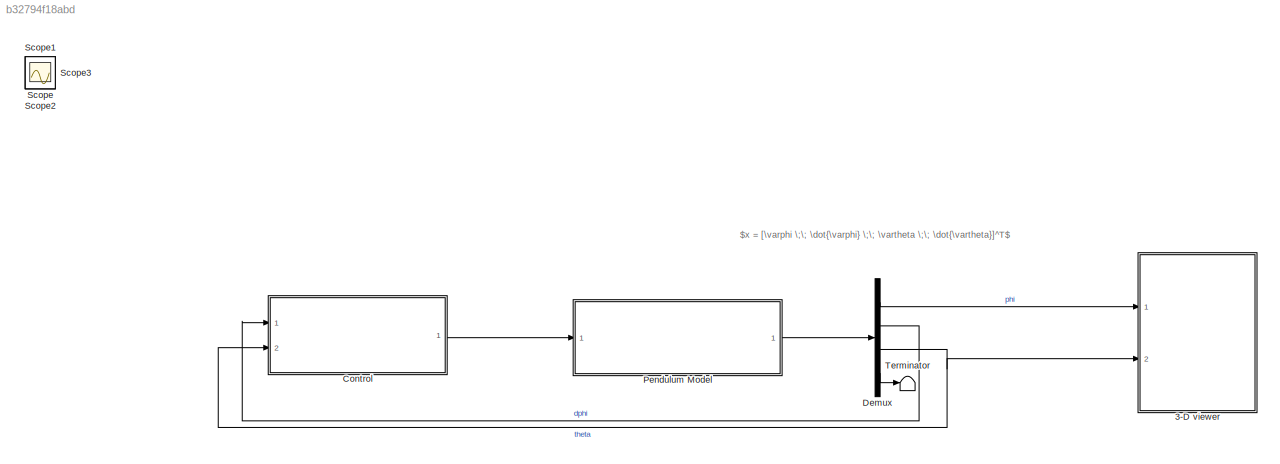
MODEL slx_b32794f18abd
KIND model
CONFIG AbsTol = auto
CONFIG EnableMultiTasking = off
CONFIG FixedStep = auto
CONFIG MaxStep = auto
CONFIG MinStep = auto
CONFIG RelTol = 1e-3
CONFIG SampleTimeConstraint = Unconstrained
CONFIG SolverName = VariableStepAuto
CONFIG StartTime = 0.0
CONFIG StopTime = 30
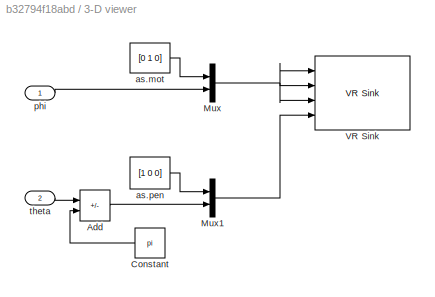
BLOCK [SubSystem] 3-D viewer
  Ports = [2]
  RequestExecContextInheritance = off
BLOCK [Sum] 3-D viewer/Add
  IconShape = rectangular
  Inputs = -+
  Ports = [2, 1]
BLOCK [Constant] 3-D viewer/Constant
  Value = pi
BLOCK [Mux] 3-D viewer/Mux
  DisplayOption = bar
  Inputs = 2
  Ports = [2, 1]
BLOCK [Mux] 3-D viewer/Mux1
  DisplayOption = bar
  Inputs = 2
  Ports = [2, 1]
BLOCK [Reference] 3-D viewer/VR Sink  REF=vrlib/VR Sink
  InstantiateOnLoad = on
  Ports = [4]
  SourceBlock = vrlib/VR Sink
  SourceProductBaseCode = SL
  SourceType = Virtual Reality Sink
BLOCK [Constant] 3-D viewer/as.mot
  Value = [0 1 0]
BLOCK [Constant] 3-D viewer/as.pen
  Value = [1 0 0]
BLOCK [Inport] 3-D viewer/phi
BLOCK [Inport] 3-D viewer/theta
  Port = 2
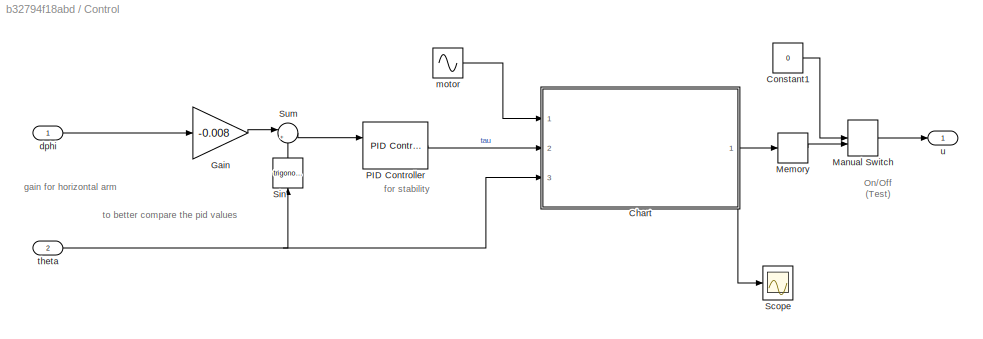
BLOCK [SubSystem] Control
  Ports = [2, 1]
  RequestExecContextInheritance = off
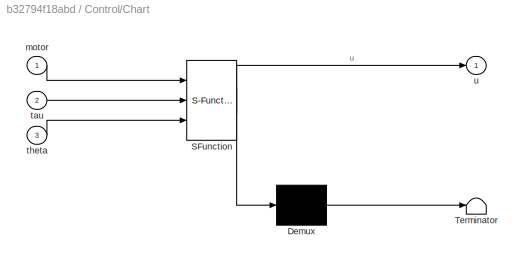
BLOCK [SubSystem] Control/Chart
  ErrorFcn = Stateflow.Translate.translate
  PermitHierarchicalResolution = ExplicitOnly
  Ports = [3, 1]
  RequestExecContextInheritance = off
  SFBlockType = Chart
  SystemSampleTime = 0.01
  TreatAsAtomicUnit = on
BLOCK [Demux] Control/Chart/ Demux 
  Outputs = 1
  Ports = [1, 1]
BLOCK [S-Function] Control/Chart/ SFunction 
  EnableBusSupport = on
  FunctionName = sf_sfun
  PortCounts = [3 2]
  Ports = [3, 2]
  SFcnIsStateOwnerBlock = off
  SFunctionDeploymentMode = off
  Tag = Stateflow S-Function 3
BLOCK [Terminator] Control/Chart/ Terminator 
BLOCK [Inport] Control/Chart/motor
BLOCK [Inport] Control/Chart/tau
  Port = 2
BLOCK [Inport] Control/Chart/theta
  Port = 3
BLOCK [Outport] Control/Chart/u
BLOCK [Constant] Control/Constant1
  Value = 0
BLOCK [Gain] Control/Gain
  Gain = -0.008
BLOCK [ManualSwitch] Control/Manual Switch
  CurrentSetting = 0
BLOCK [Memory] Control/Memory
BLOCK [Reference] Control/PID Controller  REF=pid_lib/PID Controller
  Ports = [2, 1]
  SourceBlock = pid_lib/PID Controller
  SourceProductBaseCode = SL
  SourceType = PID 1dof
BLOCK [Scope] Control/Scope
  Floating = off
  NumInputPorts = 1
  Ports = [1]
  ScopeSpecificationString = Simulink.scopes.TimeScopeBlockCfg('CurrentConfiguration', extmgr.ConfigurationSet(extmgr.Configuration('Core','General UI',true),extmgr.Configuration('Core','Source UI',true),extmgr.Configuration('Sources','WiredSimulink',true,'DataLoggingLimitDataPoints',true,'DataLoggingSaveFormat','Array','DataLoggingDecimation','1','DataLoggingDecimateData',true,'DataLoggingVariableName','ScopeData1'),extmgr.C...<+1593ch>
BLOCK [Trigonometry] Control/Sin
  NameLocation = right
  Ports = [1, 1]
BLOCK [Sum] Control/Sum
  Inputs = |+-
  Ports = [2, 1]
BLOCK [Inport] Control/dphi
BLOCK [Sin] Control/motor
  Amplitude = 8
  Frequency = 2*pi
  Ports = [0, 1]
  SampleTime = 0
BLOCK [Inport] Control/theta
  Port = 2
BLOCK [Outport] Control/u
BLOCK [Demux] Demux
  Ports = [1, 4]
BLOCK [ModelReference] Pendulum Model
  ModelNameDialog = furuta_model.slx
  ModelReferenceVersion = 1.21
  Ports = [1, 1]
BLOCK [Scope] Scope
  Floating = off
  IOType = viewer
  NumInputPorts = 1
  Ports = []
  ScopeSpecificationString = Simulink.scopes.TimeScopeBlockCfg('CurrentConfiguration', extmgr.ConfigurationSet(extmgr.Configuration('Core','General UI',true),extmgr.Configuration('Core','Source UI',true),extmgr.Configuration('Sources','WiredSimulink',true),extmgr.Configuration('Visuals','Time Domain',true,'SerializedDisplays',{struct('MinYLimReal','1.74117','MaxYLimReal','4.44593','YLabelReal','','MinYLimMag','1.74117','MaxYL...<+1397ch>
BLOCK [Scope] Scope1
  Floating = off
  IOType = viewer
  NumInputPorts = 1
  Ports = []
  ScopeSpecificationString = Simulink.scopes.TimeScopeBlockCfg('CurrentConfiguration', extmgr.ConfigurationSet(extmgr.Configuration('Core','General UI',true),extmgr.Configuration('Core','Source UI',true),extmgr.Configuration('Sources','WiredSimulink',true,'DataLoggingVariableName','ScopeData1'),extmgr.Configuration('Visuals','Time Domain',true,'SerializedDisplays',{struct('MinYLimReal','-3.02229','MaxYLimReal','1.51969','YLab...<+1411ch>
BLOCK [Scope] Scope2
  Floating = off
  IOType = viewer
  NumInputPorts = 1
  Ports = []
  ScopeSpecificationString = Simulink.scopes.TimeScopeBlockCfg('CurrentConfiguration', extmgr.ConfigurationSet(extmgr.Configuration('Core','General UI',true),extmgr.Configuration('Core','Source UI',true),extmgr.Configuration('Sources','WiredSimulink',true,'DataLoggingVariableName','ScopeData1'),extmgr.Configuration('Visuals','Time Domain',true,'SerializedDisplays',{struct('MinYLimReal','-12.5','MaxYLimReal','12.5','YLabelReal...<+1373ch>
BLOCK [Scope] Scope3
  Floating = off
  IOType = viewer
  NumInputPorts = 1
  Ports = []
  ScopeSpecificationString = Simulink.scopes.TimeScopeBlockCfg('CurrentConfiguration', extmgr.ConfigurationSet(extmgr.Configuration('Core','General UI',true),extmgr.Configuration('Core','Source UI',true),extmgr.Configuration('Sources','WiredSimulink',true,'DataLoggingVariableName','ScopeData1'),extmgr.Configuration('Visuals','Time Domain',true,'SerializedDisplays',{struct('MinYLimReal','-14.48988','MaxYLimReal','5.04881','YLa...<+1395ch>
BLOCK [Terminator] Terminator
ANNOTATION (root): $x = [\varphi \;\; \dot{\varphi} \;\; \vartheta \;\; \dot{\vartheta}]^T$
ANNOTATION Control: On/Off (Test)
ANNOTATION Control: for stability
ANNOTATION Control: gain for horizontal arm
ANNOTATION Control: to better compare the pid values
LINE 3-D viewer/Add:1 -> 3-D viewer/Mux1:2
LINE 3-D viewer/Constant:1 -> 3-D viewer/Add:2
LINE 3-D viewer/Mux1:1 -> 3-D viewer/VR Sink:4
NET 3-D viewer/Mux:1 -> 3-D viewer/VR Sink:1, 3-D viewer/VR Sink:2, 3-D viewer/VR Sink:3
LINE 3-D viewer/as.mot:1 -> 3-D viewer/Mux:1
LINE 3-D viewer/as.pen:1 -> 3-D viewer/Mux1:1
LINE 3-D viewer/phi:1 -> 3-D viewer/Mux:2
LINE 3-D viewer/theta:1 -> 3-D viewer/Add:1
NET Control/Chart:1 -> Control/Memory:1, Control/Scope:1
LINE Control/Constant1:1 -> Control/Manual Switch:1
LINE Control/Gain:1 -> Control/Sum:1
LINE Control/Manual Switch:1 -> Control/u:1
LINE Control/Memory:1 -> Control/Manual Switch:2
LINE Control/PID Controller:1 -> Control/Chart:2
LINE Control/Sin:1 -> Control/Sum:2
LINE Control/Sum:1 -> Control/PID Controller:1
LINE Control/dphi:1 -> Control/Gain:1
LINE Control/motor:1 -> Control/Chart:1
NET Control/theta:1 -> Control/Chart:3, Control/Sin:1
LINE Control:1 -> Pendulum Model:1
LINE Demux:1 -> 3-D viewer:1
LINE Demux:2 -> Control:1
NET Demux:3 -> 3-D viewer:2, Control:2
LINE Demux:4 -> Terminator:1
LINE Pendulum Model:1 -> Demux:1
note: NET lines group one-source signal fan-out (src -> all destinations, sorted); 1:1 wires keep LINE
CHART Control/Chart states=2 transitions=3
  STATE_LABEL 'farZero\ndu: u = motor;\n'
  STATE_LABEL 'closeZero\ndu: u = tau;\n'
CHART  states=0 transitions=0
